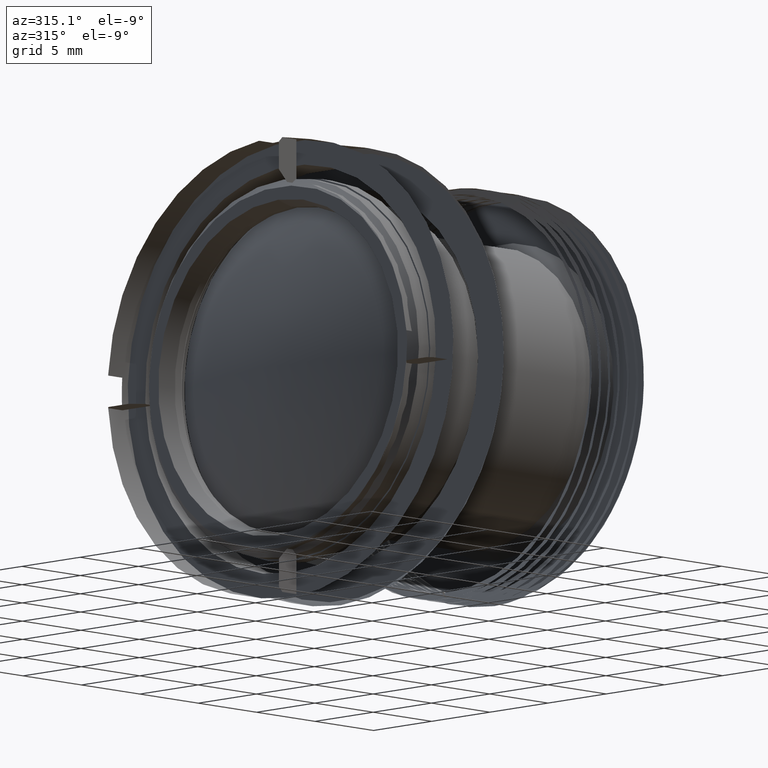
[diagram: clean part render]
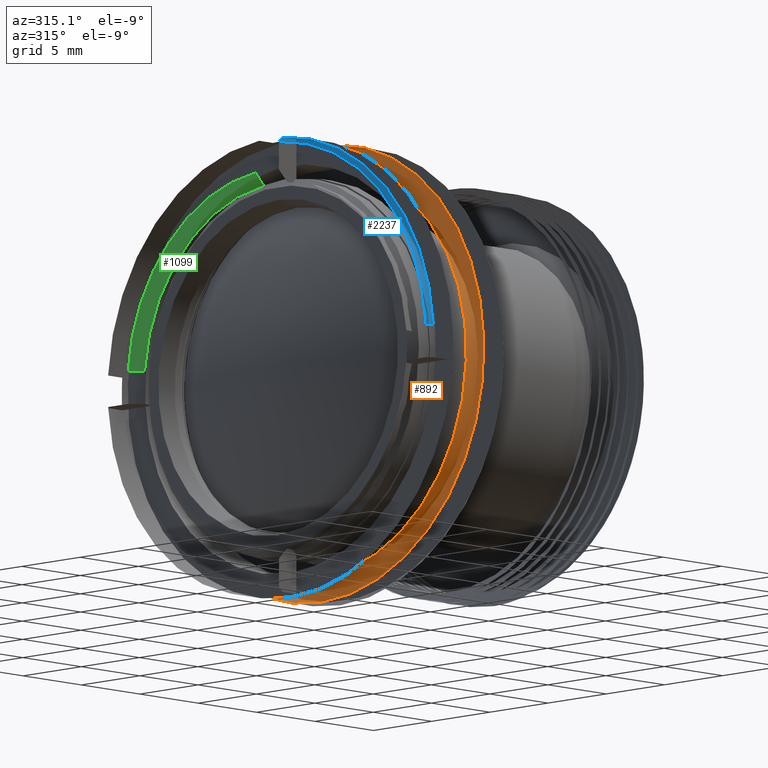
[diagram: same view with three faces highlighted in distinct colors, each labeled with its STEP entity id]
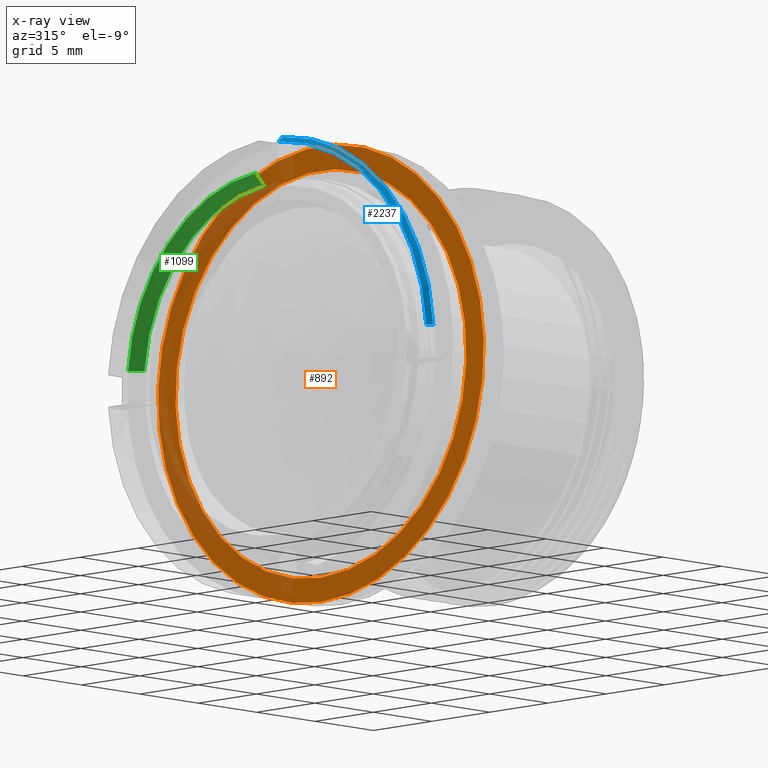
[diagram: x-ray of the same camera — body ghosted, the three highlighted faces saturated]
A machine part, auxiliary view with three faces highlighted in distinct colors.
The next image is the same camera in x-ray (body ghosted, the three faces saturated) — at least one of them is partly hidden behind the body in this view.
Their STEP definitions:

[orange] entity #892 — the highlighted planar face has unit normal (1, 0, 0).
#49 = CARTESIAN_POINT ( 'NONE',  ( 75.59999999999999432, 0.000000000000000000, -12.50000000000000000 ) ) ;
#133 = EDGE_LOOP ( 'NONE', ( #582 ) ) ;
#245 = AXIS2_PLACEMENT_3D ( 'NONE', #5134, #3538, #4338 ) ;
#324 = CARTESIAN_POINT ( 'NONE',  ( 75.59999999999999432, 12.50000000000000000, 0.000000000000000000 ) ) ;
#410 = AXIS2_PLACEMENT_3D ( 'NONE', #3262, #4474, #2375 ) ;
#471 = EDGE_CURVE ( 'NONE', #3572, #3572, #2550, .T. ) ;
#478 = CARTESIAN_POINT ( 'NONE',  ( 75.59999999999999432, 0.000000000000000000, -14.00000000000000000 ) ) ;
#582 = ORIENTED_EDGE ( 'NONE', *, *, #471, .T. ) ;
#892 = ADVANCED_FACE ( 'NONE', ( #3272, #4402 ), #2414, .T. ) ;
#1319 = EDGE_CURVE ( 'NONE', #4050, #4050, #2719, .T. ) ;
#1503 = ORIENTED_EDGE ( 'NONE', *, *, #1319, .T. ) ;
#2375 = DIRECTION ( 'NONE',  ( 0.000000000000000000, 0.000000000000000000, -1.000000000000000000 ) ) ;
#2414 = PLANE ( 'NONE',  #4270 ) ;
#2439 = DIRECTION ( 'NONE',  ( 1.000000000000000000, 0.000000000000000000, 0.000000000000000000 ) ) ;
#2550 = CIRCLE ( 'NONE', #245, 14.00000000000000000 ) ;
#2719 = CIRCLE ( 'NONE', #410, 12.50000000000000000 ) ;
#2760 = DIRECTION ( 'NONE',  ( 0.000000000000000000, 0.000000000000000000, -1.000000000000000000 ) ) ;
#3262 = CARTESIAN_POINT ( 'NONE',  ( 75.59999999999999432, 0.000000000000000000, 0.000000000000000000 ) ) ;
#3272 = FACE_BOUND ( 'NONE', #3464, .T. ) ;
#3464 = EDGE_LOOP ( 'NONE', ( #1503 ) ) ;
#3538 = DIRECTION ( 'NONE',  ( 1.000000000000000000, 0.000000000000000000, 0.000000000000000000 ) ) ;
#3572 = VERTEX_POINT ( 'NONE', #478 ) ;
#4050 = VERTEX_POINT ( 'NONE', #49 ) ;
#4270 = AXIS2_PLACEMENT_3D ( 'NONE', #324, #2439, #2760 ) ;
#4338 = DIRECTION ( 'NONE',  ( 0.000000000000000000, 0.000000000000000000, -1.000000000000000000 ) ) ;
#4402 = FACE_OUTER_BOUND ( 'NONE', #133, .T. ) ;
#4474 = DIRECTION ( 'NONE',  ( -1.000000000000000000, -0.000000000000000000, -0.000000000000000000 ) ) ;
#5134 = CARTESIAN_POINT ( 'NONE',  ( 75.59999999999999432, 0.000000000000000000, 0.000000000000000000 ) ) ;

[blue] entity #2237 — the highlighted conical surface has half-angle 45 deg.
#37 = B_SPLINE_CURVE_WITH_KNOTS ( 'NONE', 3,
 ( #3163, #1558, #4399, #5188 ),
 .UNSPECIFIED., .F., .F.,
 ( 4, 4 ),
 ( 1.734723475976807094E-18, 0.0004248196068985250870 ),
 .UNSPECIFIED. ) ;
#109 = CARTESIAN_POINT ( 'NONE',  ( 71.00000000000001421, -0.9999999999999840128, 13.66345490715909783 ) ) ;
#192 = VERTEX_POINT ( 'NONE', #2908 ) ;
#272 = DIRECTION ( 'NONE',  ( 1.000000000000000000, 0.000000000000000000, 0.000000000000000000 ) ) ;
#275 = VERTEX_POINT ( 'NONE', #1708 ) ;
#372 = EDGE_LOOP ( 'NONE', ( #5136, #4670, #846, #1010 ) ) ;
#501 = EDGE_CURVE ( 'NONE', #4736, #770, #3239, .T. ) ;
#524 = CARTESIAN_POINT ( 'NONE',  ( 71.19999718505110309, -0.9999999999999840128, 13.86398113924555098 ) ) ;
#770 = VERTEX_POINT ( 'NONE', #3764 ) ;
#846 = ORIENTED_EDGE ( 'NONE', *, *, #501, .F. ) ;
#1010 = ORIENTED_EDGE ( 'NONE', *, *, #3913, .T. ) ;
#1053 = CARTESIAN_POINT ( 'NONE',  ( 71.09999712316556497, -0.9999999999999837907, 13.76371948860511729 ) ) ;
#1211 = DIRECTION ( 'NONE',  ( 1.000000000000000000, 0.000000000000000000, 0.000000000000000000 ) ) ;
#1457 = CARTESIAN_POINT ( 'NONE',  ( 71.00000000000001421, -0.9999999999999840128, 13.66345490715909783 ) ) ;
#1529 = FACE_OUTER_BOUND ( 'NONE', #372, .T. ) ;
#1558 = CARTESIAN_POINT ( 'NONE',  ( 71.09999712316556497, -13.76371948860511374, 1.000000000000032419 ) ) ;
#1708 = CARTESIAN_POINT ( 'NONE',  ( 71.30000000000002558, -13.96424004376894068, 1.000000000000032863 ) ) ;
#1975 = AXIS2_PLACEMENT_3D ( 'NONE', #4962, #1211, #3277 ) ;
#2030 = AXIS2_PLACEMENT_3D ( 'NONE', #2266, #4285, #3070 ) ;
#2237 = ADVANCED_FACE ( 'NONE', ( #1529 ), #2978, .F. ) ;
#2266 = CARTESIAN_POINT ( 'NONE',  ( 71.00000000000002842, 0.000000000000000000, 0.000000000000000000 ) ) ;
#2363 = EDGE_CURVE ( 'NONE', #770, #275, #37, .T. ) ;
#2783 = CARTESIAN_POINT ( 'NONE',  ( 71.30000000000001137, 0.000000000000000000, 0.000000000000000000 ) ) ;
#2908 = CARTESIAN_POINT ( 'NONE',  ( 71.29999999999999716, -0.9999999999999837907, 13.96424004376893180 ) ) ;
#2978 = CONICAL_SURFACE ( 'NONE', #3671, 13.99999999999997868, 0.7853981633992321854 ) ;
#3070 = DIRECTION ( 'NONE',  ( 0.000000000000000000, 0.000000000000000000, -1.000000000000000000 ) ) ;
#3163 = CARTESIAN_POINT ( 'NONE',  ( 71.00000000000001421, -13.66345490715909605, 1.000000000000032196 ) ) ;
#3239 = CIRCLE ( 'NONE', #2030, 13.69999999999890861 ) ;
#3277 = DIRECTION ( 'NONE',  ( 0.000000000000000000, 0.000000000000000000, -1.000000000000000000 ) ) ;
#3601 = DIRECTION ( 'NONE',  ( 0.000000000000000000, 0.000000000000000000, -1.000000000000000000 ) ) ;
#3671 = AXIS2_PLACEMENT_3D ( 'NONE', #2783, #272, #3601 ) ;
#3764 = CARTESIAN_POINT ( 'NONE',  ( 71.00000000000001421, -13.66345490715909605, 1.000000000000032196 ) ) ;
#3913 = EDGE_CURVE ( 'NONE', #4736, #192, #4336, .T. ) ;
#4200 = CARTESIAN_POINT ( 'NONE',  ( 71.29999999999999716, -0.9999999999999837907, 13.96424004376893180 ) ) ;
#4285 = DIRECTION ( 'NONE',  ( 1.000000000000000000, 0.000000000000000000, 0.000000000000000000 ) ) ;
#4336 = B_SPLINE_CURVE_WITH_KNOTS ( 'NONE', 3,
 ( #1457, #1053, #524, #4200 ),
 .UNSPECIFIED., .F., .F.,
 ( 4, 4 ),
 ( 1.734723475976807094E-18, 0.0004248196068985017767 ),
 .UNSPECIFIED. ) ;
#4399 = CARTESIAN_POINT ( 'NONE',  ( 71.19999718505110309, -13.86398113924554742, 1.000000000000032641 ) ) ;
#4578 = EDGE_CURVE ( 'NONE', #192, #275, #4721, .T. ) ;
#4670 = ORIENTED_EDGE ( 'NONE', *, *, #2363, .F. ) ;
#4721 = CIRCLE ( 'NONE', #1975, 14.00000000000000000 ) ;
#4736 = VERTEX_POINT ( 'NONE', #109 ) ;
#4962 = CARTESIAN_POINT ( 'NONE',  ( 71.29999999999999716, 0.000000000000000000, 0.000000000000000000 ) ) ;
#5136 = ORIENTED_EDGE ( 'NONE', *, *, #4578, .T. ) ;
#5188 = CARTESIAN_POINT ( 'NONE',  ( 71.30000000000002558, -13.96424004376894068, 1.000000000000032863 ) ) ;

[green] entity #1099 — the highlighted conical surface has half-angle 45 deg.
#66 = CARTESIAN_POINT ( 'NONE',  ( 71.46669361756804051, 11.48989058943522679, 1.000000000000000000 ) ) ;
#182 = DIRECTION ( 'NONE',  ( -1.000000000000000000, 0.000000000000000000, 0.000000000000000000 ) ) ;
#469 = CARTESIAN_POINT ( 'NONE',  ( 71.69999999999988916, 11.25566524022625359, 0.9999999999999995559 ) ) ;
#659 = ORIENTED_EDGE ( 'NONE', *, *, #4889, .F. ) ;
#681 = DIRECTION ( 'NONE',  ( 0.000000000000000000, 0.000000000000000000, 1.000000000000000000 ) ) ;
#783 = CARTESIAN_POINT ( 'NONE',  ( 71.69999999999976126, 1.000000000000051958, 11.25566524022636372 ) ) ;
#919 = CARTESIAN_POINT ( 'NONE',  ( 71.23335870362711830, 11.72408752145322630, 1.000000000000000000 ) ) ;
#1099 = ADVANCED_FACE ( 'NONE', ( #3561 ), #2212, .T. ) ;
#1424 = VERTEX_POINT ( 'NONE', #2096 ) ;
#1624 = DIRECTION ( 'NONE',  ( 1.000000000000000000, -0.000000000000000000, -0.000000000000000000 ) ) ;
#1701 = CARTESIAN_POINT ( 'NONE',  ( 71.00000000000001421, 11.95826074310141607, 1.000000000000000000 ) ) ;
#1714 = DIRECTION ( 'NONE',  ( 1.000000000000000000, 0.000000000000000000, 0.000000000000000000 ) ) ;
#1801 = CIRCLE ( 'NONE', #2658, 11.30000000000199911 ) ;
#1888 = AXIS2_PLACEMENT_3D ( 'NONE', #2847, #1624, #4140 ) ;
#2012 = CARTESIAN_POINT ( 'NONE',  ( 71.00000000000001421, 1.000000000000014211, 11.95826074310141429 ) ) ;
#2080 = EDGE_LOOP ( 'NONE', ( #2294, #659, #2242, #3266 ) ) ;
#2096 = CARTESIAN_POINT ( 'NONE',  ( 71.00000000000001421, 11.95826074310141607, 1.000000000000000000 ) ) ;
#2212 = CONICAL_SURFACE ( 'NONE', #2292, 12.00000000000001066, 0.7853981633966887754 ) ;
#2242 = ORIENTED_EDGE ( 'NONE', *, *, #2724, .T. ) ;
#2292 = AXIS2_PLACEMENT_3D ( 'NONE', #3095, #182, #681 ) ;
#2294 = ORIENTED_EDGE ( 'NONE', *, *, #4515, .F. ) ;
#2471 = CARTESIAN_POINT ( 'NONE',  ( 71.46669361756786998, 1.000000000000013545, 11.48989058943537955 ) ) ;
#2621 = VERTEX_POINT ( 'NONE', #469 ) ;
#2658 = AXIS2_PLACEMENT_3D ( 'NONE', #4612, #1714, #2941 ) ;
#2724 = EDGE_CURVE ( 'NONE', #2621, #1424, #3241, .T. ) ;
#2847 = CARTESIAN_POINT ( 'NONE',  ( 71.00000000000002842, 0.000000000000000000, 0.000000000000000000 ) ) ;
#2855 = B_SPLINE_CURVE_WITH_KNOTS ( 'NONE', 3,
 ( #783, #2471, #4887, #2012 ),
 .UNSPECIFIED., .F., .F.,
 ( 4, 4 ),
 ( 0.000000000000000000, 0.0009917864894521933282 ),
 .UNSPECIFIED. ) ;
#2941 = DIRECTION ( 'NONE',  ( 0.000000000000000000, 0.000000000000000000, -1.000000000000000000 ) ) ;
#3095 = CARTESIAN_POINT ( 'NONE',  ( 71.00000000000002842, 0.000000000000000000, 0.000000000000000000 ) ) ;
#3241 = B_SPLINE_CURVE_WITH_KNOTS ( 'NONE', 3,
 ( #4600, #66, #919, #1701 ),
 .UNSPECIFIED., .F., .F.,
 ( 4, 4 ),
 ( 1.594813855221477995E-16, 0.0009917864894525246604 ),
 .UNSPECIFIED. ) ;
#3266 = ORIENTED_EDGE ( 'NONE', *, *, #3502, .T. ) ;
#3502 = EDGE_CURVE ( 'NONE', #1424, #4504, #4800, .T. ) ;
#3561 = FACE_OUTER_BOUND ( 'NONE', #2080, .T. ) ;
#3597 = VERTEX_POINT ( 'NONE', #4063 ) ;
#4063 = CARTESIAN_POINT ( 'NONE',  ( 71.69999999999976126, 1.000000000000051958, 11.25566524022636372 ) ) ;
#4140 = DIRECTION ( 'NONE',  ( 0.000000000000000000, 0.000000000000000000, 1.000000000000000000 ) ) ;
#4463 = CARTESIAN_POINT ( 'NONE',  ( 71.00000000000001421, 1.000000000000014211, 11.95826074310141429 ) ) ;
#4504 = VERTEX_POINT ( 'NONE', #4463 ) ;
#4515 = EDGE_CURVE ( 'NONE', #3597, #4504, #2855, .T. ) ;
#4600 = CARTESIAN_POINT ( 'NONE',  ( 71.69999999999988916, 11.25566524022625359, 0.9999999999999995559 ) ) ;
#4612 = CARTESIAN_POINT ( 'NONE',  ( 71.70000000000000284, 0.000000000000000000, 0.000000000000000000 ) ) ;
#4800 = CIRCLE ( 'NONE', #1888, 12.00000000000001066 ) ;
#4887 = CARTESIAN_POINT ( 'NONE',  ( 71.23335870362706146, 1.000000000000013989, 11.72408752145330091 ) ) ;
#4889 = EDGE_CURVE ( 'NONE', #2621, #3597, #1801, .T. ) ;